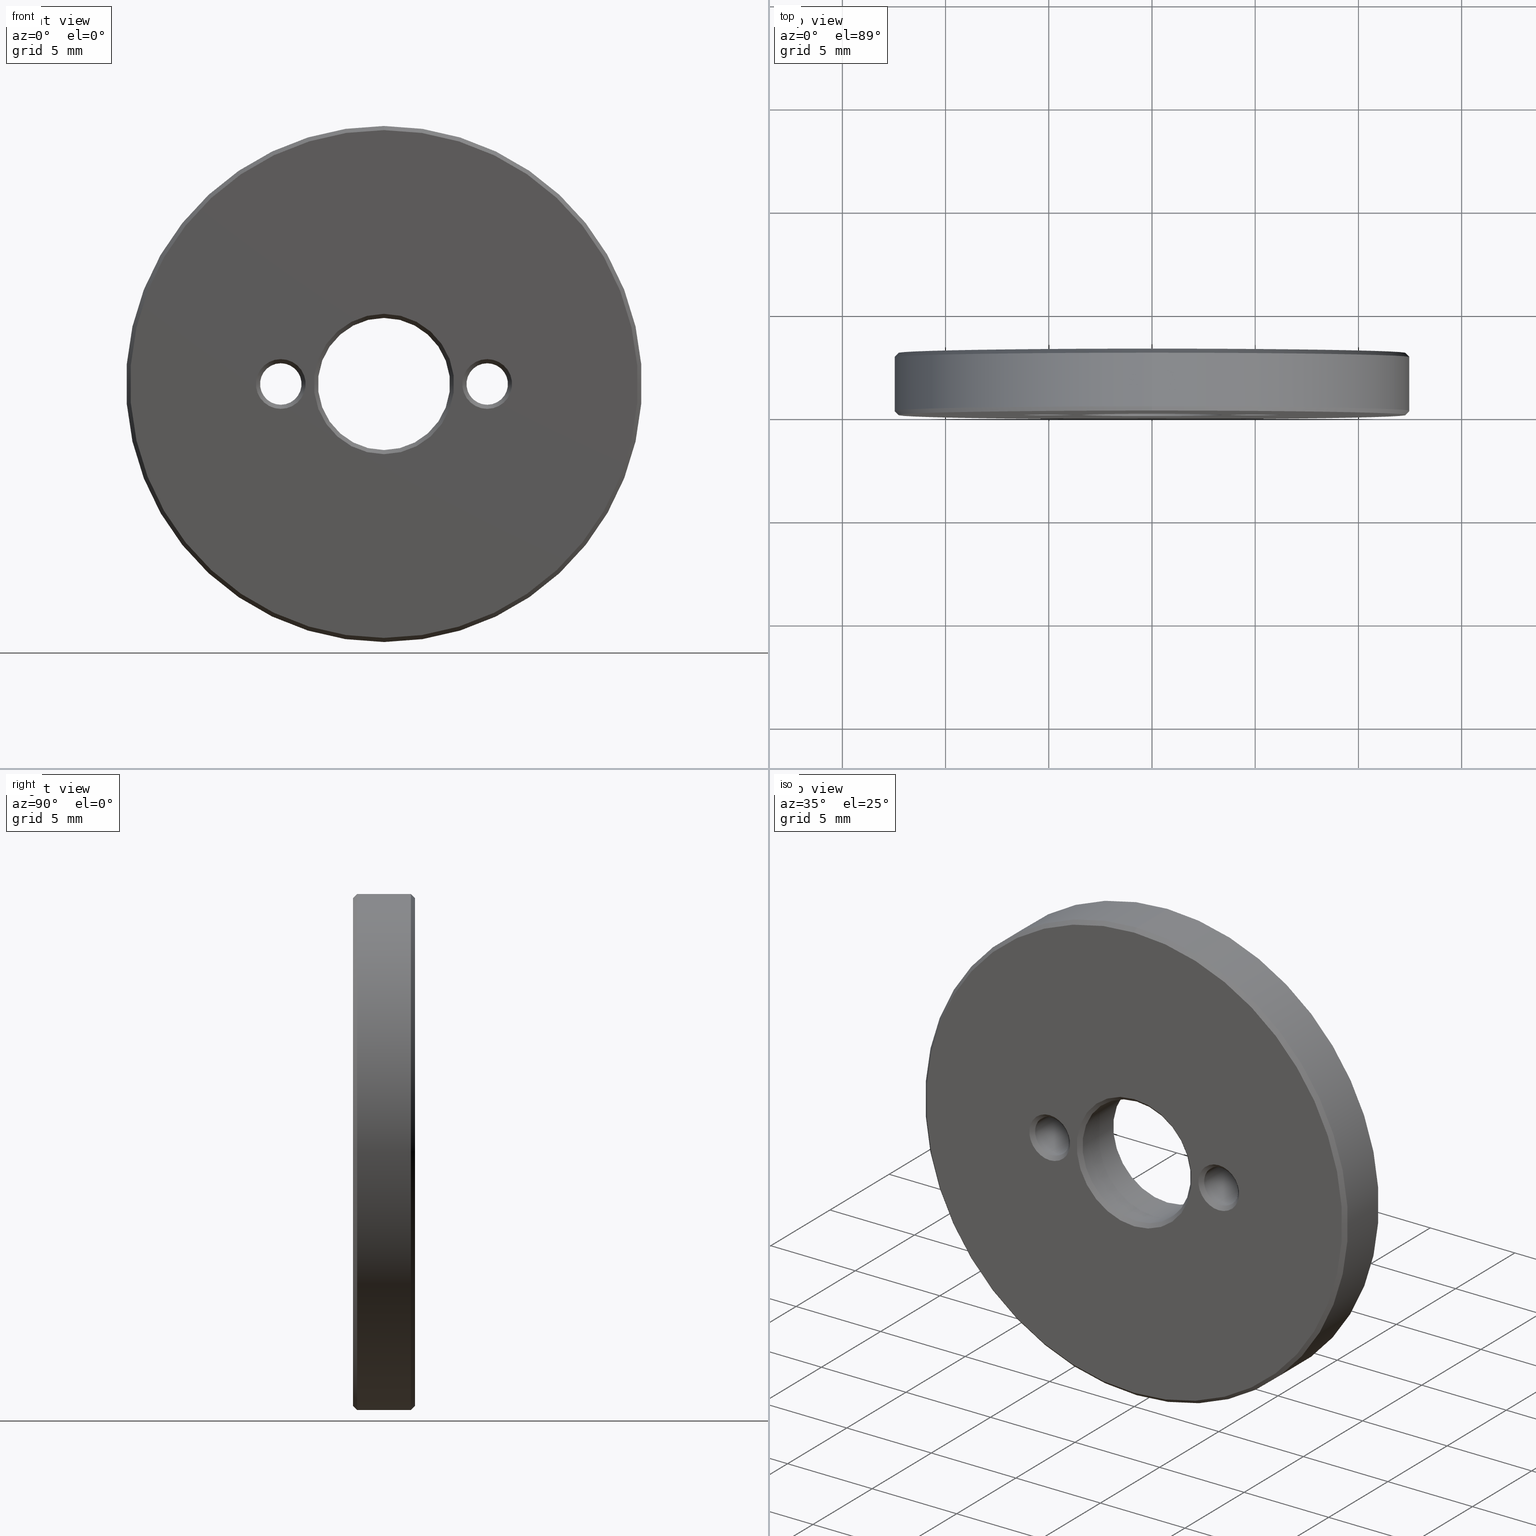
[diagram: canonical four-view strip — front | top / right | iso, engineering-drawing reading convention]
A machine part, canonical four-view strip (front | top / right | iso — engineering-drawing reading convention). The complete STEP part file that produces these views, byte-faithful:
ISO-10303-21;
HEADER;
FILE_DESCRIPTION (( 'STEP AP203' ),
    '1' );
FILE_NAME ('523802.STEP',
    '2022-12-15T01:51:35',
    ( '' ),
    ( '' ),
    'SwSTEP 2.0',
    'SolidWorks 2020',
    '' );
FILE_SCHEMA (( 'CONFIG_CONTROL_DESIGN' ));
ENDSEC;

DATA;
#1 = PERSON ( 'δָ��', 'δָ��', 'δָ��', ('δָ��'), ('δָ��'), ('δָ��') ) ;
#2 = DIRECTION ( 'NONE',  ( 0.000000000000000000, 0.000000000000000000, 1.000000000000000000 ) ) ;
#3 = EDGE_CURVE ( 'NONE', #378, #378, #266, .T. ) ;
#4 = DIRECTION ( 'NONE',  ( 0.000000000000000000, 0.000000000000000000, 1.000000000000000000 ) ) ;
#5 = CARTESIAN_POINT ( 'NONE',  ( 5.000000000000000000, 3.000000000000000000, -1.836970198721029194E-15 ) ) ;
#6 = EDGE_CURVE ( 'NONE', #133, #133, #253, .T. ) ;
#7 = AXIS2_PLACEMENT_3D ( 'NONE', #277, #182, #374 ) ;
#8 = CARTESIAN_POINT ( 'NONE',  ( 0.000000000000000000, 2.800000000000002931, 0.000000000000000000 ) ) ;
#9 = DIRECTION ( 'NONE',  ( 0.000000000000000000, 0.000000000000000000, 1.000000000000000000 ) ) ;
#10 = DIRECTION ( 'NONE',  ( 0.000000000000000000, 1.000000000000000000, 0.000000000000000000 ) ) ;
#11 = CARTESIAN_POINT ( 'NONE',  ( 0.000000000000000000, 3.000000000000000000, 0.000000000000000000 ) ) ;
#12 = ORIENTED_EDGE ( 'NONE', *, *, #236, .T. ) ;
#13 = CARTESIAN_POINT ( 'NONE',  ( 0.000000000000000000, 0.1999999999999931555, 3.200000000000000178 ) ) ;
#14 = EDGE_LOOP ( 'NONE', ( #112 ) ) ;
#15 = FACE_BOUND ( 'NONE', #178, .T. ) ;
#16 = FACE_BOUND ( 'NONE', #380, .T. ) ;
#17 = CIRCLE ( 'NONE', #135, 1.204999999999994298 ) ;
#18 = PERSON_AND_ORGANIZATION_ROLE ( 'creator' ) ;
#19 = COORDINATED_UNIVERSAL_TIME_OFFSET ( 8, 0, .AHEAD. ) ;
#20 = DIRECTION ( 'NONE',  ( 0.000000000000000000, 0.000000000000000000, 1.000000000000000000 ) ) ;
#21 =( NAMED_UNIT ( * ) SI_UNIT ( $, .STERADIAN. ) SOLID_ANGLE_UNIT ( ) );
#22 = CARTESIAN_POINT ( 'NONE',  ( 0.000000000000000000, 0.000000000000000000, 0.000000000000000000 ) ) ;
#23 = CONICAL_SURFACE ( 'NONE', #202, 1.004999999999999893, 0.7853981633974526089 ) ;
#24 = PERSON_AND_ORGANIZATION_ROLE ( 'design_supplier' ) ;
#25 = DIRECTION ( 'NONE',  ( 0.000000000000000000, 1.000000000000000000, 0.000000000000000000 ) ) ;
#26 = APPLICATION_PROTOCOL_DEFINITION ( 'international standard', 'config_control_design', 1994, #171 ) ;
#27 = CARTESIAN_POINT ( 'NONE',  ( 0.000000000000000000, 0.000000000000000000, 0.000000000000000000 ) ) ;
#28 = FACE_BOUND ( 'NONE', #364, .T. ) ;
#29 = LOCAL_TIME ( 9, 51, 35.00000000000000000, #140 ) ;
#30 = CARTESIAN_POINT ( 'NONE',  ( 5.000000000000000000, 2.800000000000007372, -1.836970198721029194E-15 ) ) ;
#31 = CYLINDRICAL_SURFACE ( 'NONE', #244, 1.004999999999999893 ) ;
#32 = CIRCLE ( 'NONE', #348, 12.30000000000000249 ) ;
#33 = DIRECTION ( 'NONE',  ( 0.000000000000000000, 0.000000000000000000, 1.000000000000000000 ) ) ;
#34 = EDGE_CURVE ( 'NONE', #229, #229, #309, .T. ) ;
#35 = CIRCLE ( 'NONE', #273, 3.200000000000000178 ) ;
#36 = FACE_BOUND ( 'NONE', #329, .T. ) ;
#37 = DIRECTION ( 'NONE',  ( 0.000000000000000000, 0.000000000000000000, 1.000000000000000000 ) ) ;
#38 = VERTEX_POINT ( 'NONE', #161 ) ;
#39 = LOCAL_TIME ( 9, 51, 35.00000000000000000, #361 ) ;
#40 = VERTEX_POINT ( 'NONE', #13 ) ;
#41 = CARTESIAN_POINT ( 'NONE',  ( 5.000000000000000000, 3.000000000000000000, -1.836970198721029194E-15 ) ) ;
#42 = ORIENTED_EDGE ( 'NONE', *, *, #320, .F. ) ;
#43 = DIRECTION ( 'NONE',  ( 0.000000000000000000, 0.000000000000000000, -1.000000000000000000 ) ) ;
#44 = CARTESIAN_POINT ( 'NONE',  ( 0.000000000000000000, 0.000000000000000000, 0.000000000000000000 ) ) ;
#45 = AXIS2_PLACEMENT_3D ( 'NONE', #68, #343, #280 ) ;
#46 = DATE_TIME_ROLE ( 'creation_date' ) ;
#47 = ADVANCED_BREP_SHAPE_REPRESENTATION ( '523802', ( #338, #386 ), #249 ) ;
#48 = EDGE_LOOP ( 'NONE', ( #264 ) ) ;
#49 =( LENGTH_UNIT ( ) NAMED_UNIT ( * ) SI_UNIT ( .MILLI., .METRE. ) );
#50 = DIRECTION ( 'NONE',  ( -0.000000000000000000, -1.000000000000000000, -0.000000000000000000 ) ) ;
#51 = CALENDAR_DATE ( 2022, 15, 12 ) ;
#52 = APPROVAL ( #263, 'δָ��' ) ;
#53 = DIRECTION ( 'NONE',  ( 0.000000000000000000, 0.000000000000000000, 1.000000000000000000 ) ) ;
#54 = CIRCLE ( 'NONE', #104, 1.004999999999999893 ) ;
#55 = APPROVAL_DATE_TIME ( #299, #52 ) ;
#56 = EDGE_LOOP ( 'NONE', ( #288 ) ) ;
#57 = SHAPE_DEFINITION_REPRESENTATION ( #64, #47 ) ;
#58 = ORIENTED_EDGE ( 'NONE', *, *, #354, .T. ) ;
#59 = ADVANCED_FACE ( 'NONE', ( #237, #85 ), #174, .T. ) ;
#60 = DIRECTION ( 'NONE',  ( 0.000000000000000000, 1.000000000000000000, 0.000000000000000000 ) ) ;
#61 = CARTESIAN_POINT ( 'NONE',  ( 5.000000000000000000, 0.1999999999999944600, -1.836970198721029194E-15 ) ) ;
#62 = EDGE_CURVE ( 'NONE', #383, #383, #32, .T. ) ;
#63 = FACE_BOUND ( 'NONE', #227, .T. ) ;
#64 = PRODUCT_DEFINITION_SHAPE ( 'NONE', 'NONE',  #216 ) ;
#65 = DIRECTION ( 'NONE',  ( -0.000000000000000000, -1.000000000000000000, -0.000000000000000000 ) ) ;
#66 = AXIS2_PLACEMENT_3D ( 'NONE', #121, #158, #125 ) ;
#67 = CIRCLE ( 'NONE', #228, 12.50000000000000000 ) ;
#68 = CARTESIAN_POINT ( 'NONE',  ( -5.000000000000000000, 0.000000000000000000, 0.000000000000000000 ) ) ;
#69 = CARTESIAN_POINT ( 'NONE',  ( -5.000000000000000000, 2.799999999999997158, 1.004999999999999893 ) ) ;
#70 = EDGE_CURVE ( 'NONE', #99, #99, #222, .T. ) ;
#71 = VERTEX_POINT ( 'NONE', #77 ) ;
#72 = EDGE_LOOP ( 'NONE', ( #81 ) ) ;
#73 = ADVANCED_FACE ( 'NONE', ( #118, #391 ), #368, .T. ) ;
#74 = CC_DESIGN_APPROVAL ( #52, ( #211 ) ) ;
#75 = DIRECTION ( 'NONE',  ( 0.000000000000000000, 0.000000000000000000, 1.000000000000000000 ) ) ;
#76 = EDGE_LOOP ( 'NONE', ( #270 ) ) ;
#77 = CARTESIAN_POINT ( 'NONE',  ( 0.000000000000000000, 2.800000000000002931, 12.50000000000000000 ) ) ;
#78 = EDGE_LOOP ( 'NONE', ( #356 ) ) ;
#79 = CARTESIAN_POINT ( 'NONE',  ( 5.000000000000000000, 0.000000000000000000, 1.204999999999992522 ) ) ;
#80 = DATE_TIME_ROLE ( 'classification_date' ) ;
#81 = ORIENTED_EDGE ( 'NONE', *, *, #34, .F. ) ;
#82 = LOCAL_TIME ( 9, 51, 35.00000000000000000, #117 ) ;
#83 = EDGE_LOOP ( 'NONE', ( #180 ) ) ;
#84 = PERSON_AND_ORGANIZATION_ROLE ( 'design_owner' ) ;
#85 = FACE_BOUND ( 'NONE', #166, .T. ) ;
#86 = EDGE_LOOP ( 'NONE', ( #324 ) ) ;
#87 = APPROVAL_PERSON_ORGANIZATION ( #138, #52, #390 ) ;
#88 = CALENDAR_DATE ( 2022, 15, 12 ) ;
#89 = DIRECTION ( 'NONE',  ( -0.000000000000000000, -1.000000000000000000, -0.000000000000000000 ) ) ;
#90 = FACE_BOUND ( 'NONE', #76, .T. ) ;
#91 = FACE_OUTER_BOUND ( 'NONE', #272, .T. ) ;
#92 = LOCAL_TIME ( 9, 51, 35.00000000000000000, #359 ) ;
#93 = CYLINDRICAL_SURFACE ( 'NONE', #365, 3.200000000000000178 ) ;
#94 = ADVANCED_FACE ( 'NONE', ( #304, #139 ), #148, .F. ) ;
#95 = DIRECTION ( 'NONE',  ( 0.000000000000000000, 0.000000000000000000, -1.000000000000000000 ) ) ;
#96 = FACE_BOUND ( 'NONE', #173, .T. ) ;
#97 = AXIS2_PLACEMENT_3D ( 'NONE', #41, #376, #165 ) ;
#98 = CARTESIAN_POINT ( 'NONE',  ( 0.000000000000000000, 0.000000000000000000, 12.29999999999999893 ) ) ;
#99 = VERTEX_POINT ( 'NONE', #224 ) ;
#100 = EDGE_LOOP ( 'NONE', ( #142 ) ) ;
#101 = FACE_OUTER_BOUND ( 'NONE', #106, .T. ) ;
#102 = ORIENTED_EDGE ( 'NONE', *, *, #379, .F. ) ;
#103 = ADVANCED_FACE ( 'NONE', ( #247, #312 ), #313, .F. ) ;
#104 = AXIS2_PLACEMENT_3D ( 'NONE', #255, #128, #252 ) ;
#105 = DIRECTION ( 'NONE',  ( 0.000000000000000000, 0.000000000000000000, -1.000000000000000000 ) ) ;
#106 = EDGE_LOOP ( 'NONE', ( #384 ) ) ;
#107 = DIRECTION ( 'NONE',  ( -0.000000000000000000, -1.000000000000000000, -0.000000000000000000 ) ) ;
#108 = PERSON_AND_ORGANIZATION ( #1, #265 ) ;
#109 = ORIENTED_EDGE ( 'NONE', *, *, #159, .T. ) ;
#110 = PERSON_AND_ORGANIZATION ( #1, #265 ) ;
#111 = ADVANCED_FACE ( 'NONE', ( #91, #126 ), #93, .F. ) ;
#112 = ORIENTED_EDGE ( 'NONE', *, *, #236, .F. ) ;
#113 = APPLICATION_PROTOCOL_DEFINITION ( 'international standard', 'config_control_design', 1994, #303 ) ;
#114 = DIRECTION ( 'NONE',  ( 0.000000000000000000, 0.000000000000000000, 1.000000000000000000 ) ) ;
#115 =( NAMED_UNIT ( * ) PLANE_ANGLE_UNIT ( ) SI_UNIT ( $, .RADIAN. ) );
#116 = ORIENTED_EDGE ( 'NONE', *, *, #127, .T. ) ;
#117 = COORDINATED_UNIVERSAL_TIME_OFFSET ( 8, 0, .AHEAD. ) ;
#118 = FACE_OUTER_BOUND ( 'NONE', #56, .T. ) ;
#119 = AXIS2_PLACEMENT_3D ( 'NONE', #61, #310, #33 ) ;
#120 = ADVANCED_FACE ( 'NONE', ( #183, #36 ), #385, .F. ) ;
#121 = CARTESIAN_POINT ( 'NONE',  ( 0.000000000000000000, 0.000000000000000000, 0.000000000000000000 ) ) ;
#122 = CARTESIAN_POINT ( 'NONE',  ( 0.000000000000000000, 0.2000000000000022593, 0.000000000000000000 ) ) ;
#123 = FACE_OUTER_BOUND ( 'NONE', #230, .T. ) ;
#124 = CC_DESIGN_DATE_AND_TIME_ASSIGNMENT ( #176, #46, ( #216 ) ) ;
#125 = DIRECTION ( 'NONE',  ( 0.000000000000000000, -0.000000000000000000, 1.000000000000000000 ) ) ;
#126 = FACE_OUTER_BOUND ( 'NONE', #267, .T. ) ;
#127 = EDGE_CURVE ( 'NONE', #192, #192, #35, .T. ) ;
#128 = DIRECTION ( 'NONE',  ( 0.000000000000000000, 1.000000000000000000, 0.000000000000000000 ) ) ;
#129 = FACE_OUTER_BOUND ( 'NONE', #14, .T. ) ;
#130 = ORIENTED_EDGE ( 'NONE', *, *, #206, .T. ) ;
#131 = CARTESIAN_POINT ( 'NONE',  ( -5.000000000000000000, 2.799999999999997158, 0.000000000000000000 ) ) ;
#132 = ORIENTED_EDGE ( 'NONE', *, *, #379, .T. ) ;
#133 = VERTEX_POINT ( 'NONE', #258 ) ;
#134 = CC_DESIGN_PERSON_AND_ORGANIZATION_ASSIGNMENT ( #110, #172, ( #211 ) ) ;
#135 = AXIS2_PLACEMENT_3D ( 'NONE', #375, #339, #217 ) ;
#136 = CONICAL_SURFACE ( 'NONE', #353, 1.204999999999994298, 0.7853981633974482790 ) ;
#137 = CARTESIAN_POINT ( 'NONE',  ( 0.000000000000000000, 3.000000000000000000, 3.400000000000000355 ) ) ;
#138 = PERSON_AND_ORGANIZATION ( #1, #265 ) ;
#139 = FACE_OUTER_BOUND ( 'NONE', #225, .T. ) ;
#140 = COORDINATED_UNIVERSAL_TIME_OFFSET ( 8, 0, .AHEAD. ) ;
#141 = CC_DESIGN_PERSON_AND_ORGANIZATION_ASSIGNMENT ( #292, #18, ( #216 ) ) ;
#142 = ORIENTED_EDGE ( 'NONE', *, *, #354, .F. ) ;
#143 = CC_DESIGN_APPROVAL ( #279, ( #216 ) ) ;
#144 = ORIENTED_EDGE ( 'NONE', *, *, #6, .F. ) ;
#145 = SECURITY_CLASSIFICATION_LEVEL ( 'unclassified' ) ;
#146 = PRODUCT_RELATED_PRODUCT_CATEGORY ( 'detail', '', ( #189 ) ) ;
#147 = ORIENTED_EDGE ( 'NONE', *, *, #3, .T. ) ;
#148 = CONICAL_SURFACE ( 'NONE', #210, 1.204999999999994298, 0.7853981633974482790 ) ;
#149 = PERSON_AND_ORGANIZATION ( #1, #265 ) ;
#150 = CARTESIAN_POINT ( 'NONE',  ( 0.000000000000000000, 3.000000000000000000, 0.000000000000000000 ) ) ;
#151 = FACE_OUTER_BOUND ( 'NONE', #78, .T. ) ;
#152 = AXIS2_PLACEMENT_3D ( 'NONE', #30, #250, #2 ) ;
#153 = APPROVAL_PERSON_ORGANIZATION ( #169, #279, #209 ) ;
#154 = FACE_OUTER_BOUND ( 'NONE', #86, .T. ) ;
#155 = DIRECTION ( 'NONE',  ( 0.000000000000000000, 0.000000000000000000, 1.000000000000000000 ) ) ;
#156 = CARTESIAN_POINT ( 'NONE',  ( -5.000000000000000000, 3.000000000000000000, 0.000000000000000000 ) ) ;
#157 = AXIS2_PLACEMENT_3D ( 'NONE', #5, #65, #43 ) ;
#158 = DIRECTION ( 'NONE',  ( 0.000000000000000000, 1.000000000000000000, 0.000000000000000000 ) ) ;
#159 = EDGE_CURVE ( 'NONE', #71, #71, #259, .T. ) ;
#160 = DIRECTION ( 'NONE',  ( 0.000000000000000000, 1.000000000000000000, 0.000000000000000000 ) ) ;
#161 = CARTESIAN_POINT ( 'NONE',  ( 5.000000000000000000, 3.000000000000000000, 1.204999999999992522 ) ) ;
#162 = ORIENTED_EDGE ( 'NONE', *, *, #62, .F. ) ;
#163 = CLOSED_SHELL ( 'NONE', ( #336, #199, #73, #111, #307, #246, #340, #94, #170, #285, #367, #103, #59, #120 ) ) ;
#164 = FACE_BOUND ( 'NONE', #205, .T. ) ;
#165 = DIRECTION ( 'NONE',  ( 0.000000000000000000, 0.000000000000000000, 1.000000000000000000 ) ) ;
#166 = EDGE_LOOP ( 'NONE', ( #162 ) ) ;
#167 = VERTEX_POINT ( 'NONE', #137 ) ;
#168 = EDGE_LOOP ( 'NONE', ( #327 ) ) ;
#169 = PERSON_AND_ORGANIZATION ( #1, #265 ) ;
#170 = ADVANCED_FACE ( 'NONE', ( #341, #218 ), #241, .F. ) ;
#171 = APPLICATION_CONTEXT ( 'configuration controlled 3d designs of mechanical parts and assemblies' ) ;
#172 = PERSON_AND_ORGANIZATION_ROLE ( 'creator' ) ;
#173 = EDGE_LOOP ( 'NONE', ( #200 ) ) ;
#174 = CONICAL_SURFACE ( 'NONE', #381, 12.30000000000000249, 0.7853981633974526089 ) ;
#175 = CARTESIAN_POINT ( 'NONE',  ( -5.000000000000000000, 0.1999999999999944600, 0.000000000000000000 ) ) ;
#176 = DATE_AND_TIME ( #51, #82 ) ;
#177 = AXIS2_PLACEMENT_3D ( 'NONE', #284, #226, #351 ) ;
#178 = EDGE_LOOP ( 'NONE', ( #42 ) ) ;
#179 = PERSON_AND_ORGANIZATION ( #1, #265 ) ;
#180 = ORIENTED_EDGE ( 'NONE', *, *, #70, .F. ) ;
#181 = CARTESIAN_POINT ( 'NONE',  ( -5.000000000000000000, 3.000000000000000000, 0.000000000000000000 ) ) ;
#182 = DIRECTION ( 'NONE',  ( -0.000000000000000000, -1.000000000000000000, -0.000000000000000000 ) ) ;
#183 = FACE_OUTER_BOUND ( 'NONE', #395, .T. ) ;
#184 = CARTESIAN_POINT ( 'NONE',  ( 0.000000000000000000, 2.800000000000003819, 0.000000000000000000 ) ) ;
#185 = DIRECTION ( 'NONE',  ( 0.000000000000000000, 0.000000000000000000, -1.000000000000000000 ) ) ;
#186 = EDGE_CURVE ( 'NONE', #193, #193, #17, .T. ) ;
#187 = AXIS2_PLACEMENT_3D ( 'NONE', #370, #191, #251 ) ;
#188 = CIRCLE ( 'NONE', #97, 1.204999999999994298 ) ;
#189 = PRODUCT ( '523802', '523802', '', ( #328 ) ) ;
#190 = AXIS2_PLACEMENT_3D ( 'NONE', #300, #214, #335 ) ;
#191 = DIRECTION ( 'NONE',  ( -0.000000000000000000, -1.000000000000000000, -0.000000000000000000 ) ) ;
#192 = VERTEX_POINT ( 'NONE', #355 ) ;
#193 = VERTEX_POINT ( 'NONE', #79 ) ;
#194 = CIRCLE ( 'NONE', #177, 3.200000000000000178 ) ;
#195 = CC_DESIGN_PERSON_AND_ORGANIZATION_ASSIGNMENT ( #179, #84, ( #189 ) ) ;
#196 = CARTESIAN_POINT ( 'NONE',  ( -5.000000000000000000, 2.799999999999997158, 0.000000000000000000 ) ) ;
#197 = VERTEX_POINT ( 'NONE', #323 ) ;
#198 = ORIENTED_EDGE ( 'NONE', *, *, #347, .F. ) ;
#199 = ADVANCED_FACE ( 'NONE', ( #63, #96, #28, #123 ), #308, .F. ) ;
#200 = ORIENTED_EDGE ( 'NONE', *, *, #186, .T. ) ;
#201 = AXIS2_PLACEMENT_3D ( 'NONE', #8, #344, #4 ) ;
#202 = AXIS2_PLACEMENT_3D ( 'NONE', #196, #10, #321 ) ;
#203 = PERSON_AND_ORGANIZATION ( #1, #265 ) ;
#204 = ORIENTED_EDGE ( 'NONE', *, *, #159, .F. ) ;
#205 = EDGE_LOOP ( 'NONE', ( #322 ) ) ;
#206 = EDGE_CURVE ( 'NONE', #197, #197, #289, .T. ) ;
#207 = APPROVAL_STATUS ( 'not_yet_approved' ) ;
#208 = EDGE_LOOP ( 'NONE', ( #204 ) ) ;
#209 = APPROVAL_ROLE ( '' ) ;
#210 = AXIS2_PLACEMENT_3D ( 'NONE', #262, #233, #95 ) ;
#211 = PRODUCT_DEFINITION_FORMATION_WITH_SPECIFIED_SOURCE ( '�κ�', '', #189, .NOT_KNOWN. ) ;
#212 = ORIENTED_EDGE ( 'NONE', *, *, #206, .F. ) ;
#213 = DATE_AND_TIME ( #88, #314 ) ;
#214 = DIRECTION ( 'NONE',  ( -0.000000000000000000, -1.000000000000000000, -0.000000000000000000 ) ) ;
#215 = FACE_OUTER_BOUND ( 'NONE', #48, .T. ) ;
#216 = PRODUCT_DEFINITION ( 'δ֪', '', #211, #371 ) ;
#217 = DIRECTION ( 'NONE',  ( 0.000000000000000000, 0.000000000000000000, 1.000000000000000000 ) ) ;
#218 = FACE_OUTER_BOUND ( 'NONE', #72, .T. ) ;
#219 = DIRECTION ( 'NONE',  ( -0.000000000000000000, -1.000000000000000000, -0.000000000000000000 ) ) ;
#220 = CARTESIAN_POINT ( 'NONE',  ( 0.000000000000000000, 3.000000000000000000, 0.000000000000000000 ) ) ;
#221 = CIRCLE ( 'NONE', #45, 1.204999999999994298 ) ;
#222 = CIRCLE ( 'NONE', #387, 1.205000000000004734 ) ;
#223 = VERTEX_POINT ( 'NONE', #316 ) ;
#224 = CARTESIAN_POINT ( 'NONE',  ( -5.000000000000000000, 3.000000000000000000, 1.205000000000004734 ) ) ;
#225 = EDGE_LOOP ( 'NONE', ( #352 ) ) ;
#226 = DIRECTION ( 'NONE',  ( -0.000000000000000000, -1.000000000000000000, -0.000000000000000000 ) ) ;
#227 = EDGE_LOOP ( 'NONE', ( #12 ) ) ;
#228 = AXIS2_PLACEMENT_3D ( 'NONE', #231, #282, #37 ) ;
#229 = VERTEX_POINT ( 'NONE', #260 ) ;
#230 = EDGE_LOOP ( 'NONE', ( #147 ) ) ;
#231 = CARTESIAN_POINT ( 'NONE',  ( 0.000000000000000000, 0.2000000000000022593, 0.000000000000000000 ) ) ;
#232 = CALENDAR_DATE ( 2022, 15, 12 ) ;
#233 = DIRECTION ( 'NONE',  ( -0.000000000000000000, -1.000000000000000000, -0.000000000000000000 ) ) ;
#234 = APPROVAL_STATUS ( 'not_yet_approved' ) ;
#235 = DIRECTION ( 'NONE',  ( 0.000000000000000000, 0.000000000000000000, -1.000000000000000000 ) ) ;
#236 = EDGE_CURVE ( 'NONE', #223, #223, #221, .T. ) ;
#237 = FACE_OUTER_BOUND ( 'NONE', #208, .T. ) ;
#238 = CALENDAR_DATE ( 2022, 15, 12 ) ;
#239 = ORIENTED_EDGE ( 'NONE', *, *, #70, .T. ) ;
#240 = DATE_AND_TIME ( #238, #92 ) ;
#241 = CONICAL_SURFACE ( 'NONE', #187, 3.399999999999993250, 0.7853981633974482790 ) ;
#242 = SECURITY_CLASSIFICATION ( '', '', #145 ) ;
#243 = EDGE_LOOP ( 'NONE', ( #132 ) ) ;
#244 = AXIS2_PLACEMENT_3D ( 'NONE', #156, #245, #369 ) ;
#245 = DIRECTION ( 'NONE',  ( -0.000000000000000000, -1.000000000000000000, -0.000000000000000000 ) ) ;
#246 = ADVANCED_FACE ( 'NONE', ( #151, #154 ), #31, .F. ) ;
#247 = FACE_OUTER_BOUND ( 'NONE', #283, .T. ) ;
#248 = CARTESIAN_POINT ( 'NONE',  ( 0.000000000000000000, 2.800000000000003819, 0.000000000000000000 ) ) ;
#249 =( GEOMETRIC_REPRESENTATION_CONTEXT ( 3 ) GLOBAL_UNCERTAINTY_ASSIGNED_CONTEXT ( ( #342 ) ) GLOBAL_UNIT_ASSIGNED_CONTEXT ( ( #49, #115, #21 ) ) REPRESENTATION_CONTEXT ( 'NONE', 'WORKASPACE' ) );
#250 = DIRECTION ( 'NONE',  ( 0.000000000000000000, 1.000000000000000000, 0.000000000000000000 ) ) ;
#251 = DIRECTION ( 'NONE',  ( 0.000000000000000000, 0.000000000000000000, -1.000000000000000000 ) ) ;
#252 = DIRECTION ( 'NONE',  ( 0.000000000000000000, 0.000000000000000000, 1.000000000000000000 ) ) ;
#253 = CIRCLE ( 'NONE', #305, 1.004999999999999893 ) ;
#254 = CONICAL_SURFACE ( 'NONE', #291, 12.50000000000000000, 0.7853981633974482790 ) ;
#255 = CARTESIAN_POINT ( 'NONE',  ( 5.000000000000000000, 2.800000000000007372, -1.836970198721029194E-15 ) ) ;
#256 = EDGE_LOOP ( 'NONE', ( #109 ) ) ;
#257 = DIRECTION ( 'NONE',  ( 0.000000000000000000, -0.000000000000000000, 1.000000000000000000 ) ) ;
#258 = CARTESIAN_POINT ( 'NONE',  ( -5.000000000000000000, 0.1999999999999944600, 1.004999999999999893 ) ) ;
#259 = CIRCLE ( 'NONE', #201, 12.50000000000000000 ) ;
#260 = CARTESIAN_POINT ( 'NONE',  ( 0.000000000000000000, 0.000000000000000000, 3.399999999999993250 ) ) ;
#261 = CALENDAR_DATE ( 2022, 15, 12 ) ;
#262 = CARTESIAN_POINT ( 'NONE',  ( 5.000000000000000000, 0.000000000000000000, -1.836970198721029194E-15 ) ) ;
#263 = APPROVAL_STATUS ( 'not_yet_approved' ) ;
#264 = ORIENTED_EDGE ( 'NONE', *, *, #311, .F. ) ;
#265 = ORGANIZATION ( 'δָ��', 'δָ��', '' ) ;
#266 = CIRCLE ( 'NONE', #319, 12.29999999999999893 ) ;
#267 = EDGE_LOOP ( 'NONE', ( #116 ) ) ;
#268 = EDGE_CURVE ( 'NONE', #167, #167, #326, .T. ) ;
#269 = APPROVAL_DATE_TIME ( #330, #279 ) ;
#270 = ORIENTED_EDGE ( 'NONE', *, *, #3, .F. ) ;
#271 = VERTEX_POINT ( 'NONE', #332 ) ;
#272 = EDGE_LOOP ( 'NONE', ( #58 ) ) ;
#273 = AXIS2_PLACEMENT_3D ( 'NONE', #248, #60, #373 ) ;
#274 = DIRECTION ( 'NONE',  ( 0.000000000000000000, 1.000000000000000000, 0.000000000000000000 ) ) ;
#275 = FACE_OUTER_BOUND ( 'NONE', #389, .T. ) ;
#276 = FACE_OUTER_BOUND ( 'NONE', #243, .T. ) ;
#277 = CARTESIAN_POINT ( 'NONE',  ( 0.000000000000000000, 3.000000000000000000, 0.000000000000000000 ) ) ;
#278 = AXIS2_PLACEMENT_3D ( 'NONE', #11, #281, #257 ) ;
#279 = APPROVAL ( #207, 'δָ��' ) ;
#280 = DIRECTION ( 'NONE',  ( 0.000000000000000000, 0.000000000000000000, 1.000000000000000000 ) ) ;
#281 = DIRECTION ( 'NONE',  ( 0.000000000000000000, 1.000000000000000000, 0.000000000000000000 ) ) ;
#282 = DIRECTION ( 'NONE',  ( -0.000000000000000000, 1.000000000000000000, -0.000000000000000000 ) ) ;
#283 = EDGE_LOOP ( 'NONE', ( #358 ) ) ;
#284 = CARTESIAN_POINT ( 'NONE',  ( 0.000000000000000000, 0.1999999999999931555, 0.000000000000000000 ) ) ;
#285 = ADVANCED_FACE ( 'NONE', ( #90, #215 ), #254, .T. ) ;
#286 = FACE_OUTER_BOUND ( 'NONE', #83, .T. ) ;
#287 = CARTESIAN_POINT ( 'NONE',  ( 0.000000000000000000, 3.000000000000000000, 12.30000000000000249 ) ) ;
#288 = ORIENTED_EDGE ( 'NONE', *, *, #311, .T. ) ;
#289 = CIRCLE ( 'NONE', #119, 1.004999999999999893 ) ;
#290 = CC_DESIGN_PERSON_AND_ORGANIZATION_ASSIGNMENT ( #108, #394, ( #242 ) ) ;
#291 = AXIS2_PLACEMENT_3D ( 'NONE', #122, #337, #155 ) ;
#292 = PERSON_AND_ORGANIZATION ( #1, #265 ) ;
#293 = APPROVAL_ROLE ( '' ) ;
#294 = DIRECTION ( 'NONE',  ( 0.000000000000000000, 0.000000000000000000, 1.000000000000000000 ) ) ;
#295 = AXIS2_PLACEMENT_3D ( 'NONE', #22, #393, #114 ) ;
#296 = DIRECTION ( 'NONE',  ( 0.000000000000000000, 0.000000000000000000, 1.000000000000000000 ) ) ;
#297 = DIRECTION ( 'NONE',  ( -0.000000000000000000, -1.000000000000000000, -0.000000000000000000 ) ) ;
#298 = CC_DESIGN_APPROVAL ( #301, ( #242 ) ) ;
#299 = DATE_AND_TIME ( #261, #39 ) ;
#300 = CARTESIAN_POINT ( 'NONE',  ( 0.000000000000000000, 3.000000000000000000, 0.000000000000000000 ) ) ;
#301 = APPROVAL ( #234, 'δָ��' ) ;
#302 = EDGE_LOOP ( 'NONE', ( #212 ) ) ;
#303 = APPLICATION_CONTEXT ( 'configuration controlled 3d designs of mechanical parts and assemblies' ) ;
#304 = FACE_BOUND ( 'NONE', #302, .T. ) ;
#305 = AXIS2_PLACEMENT_3D ( 'NONE', #175, #297, #20 ) ;
#306 = CYLINDRICAL_SURFACE ( 'NONE', #157, 1.004999999999999893 ) ;
#307 = ADVANCED_FACE ( 'NONE', ( #275, #276 ), #306, .F. ) ;
#308 = PLANE ( 'NONE',  #66 ) ;
#309 = CIRCLE ( 'NONE', #295, 3.399999999999993250 ) ;
#310 = DIRECTION ( 'NONE',  ( -0.000000000000000000, -1.000000000000000000, -0.000000000000000000 ) ) ;
#311 = EDGE_CURVE ( 'NONE', #346, #346, #67, .T. ) ;
#312 = FACE_BOUND ( 'NONE', #333, .T. ) ;
#313 = CONICAL_SURFACE ( 'NONE', #345, 3.200000000000000178, 0.7853981633974580490 ) ;
#314 = LOCAL_TIME ( 9, 51, 35.00000000000000000, #19 ) ;
#315 = VERTEX_POINT ( 'NONE', #69 ) ;
#316 = CARTESIAN_POINT ( 'NONE',  ( -5.000000000000000000, 0.000000000000000000, 1.204999999999994298 ) ) ;
#317 = FACE_BOUND ( 'NONE', #350, .T. ) ;
#318 = APPROVAL_PERSON_ORGANIZATION ( #203, #301, #293 ) ;
#319 = AXIS2_PLACEMENT_3D ( 'NONE', #27, #50, #294 ) ;
#320 = EDGE_CURVE ( 'NONE', #315, #315, #372, .T. ) ;
#321 = DIRECTION ( 'NONE',  ( 0.000000000000000000, 0.000000000000000000, 1.000000000000000000 ) ) ;
#322 = ORIENTED_EDGE ( 'NONE', *, *, #268, .T. ) ;
#323 = CARTESIAN_POINT ( 'NONE',  ( 5.000000000000000000, 0.1999999999999944600, 1.004999999999998117 ) ) ;
#324 = ORIENTED_EDGE ( 'NONE', *, *, #320, .T. ) ;
#325 = CC_DESIGN_PERSON_AND_ORGANIZATION_ASSIGNMENT ( #149, #24, ( #211 ) ) ;
#326 = CIRCLE ( 'NONE', #7, 3.400000000000000355 ) ;
#327 = ORIENTED_EDGE ( 'NONE', *, *, #347, .T. ) ;
#328 = MECHANICAL_CONTEXT ( 'NONE', #303, 'mechanical' ) ;
#329 = EDGE_LOOP ( 'NONE', ( #102 ) ) ;
#330 = DATE_AND_TIME ( #232, #29 ) ;
#331 = DIRECTION ( 'NONE',  ( 0.000000000000000000, -1.000000000000000000, 0.000000000000000000 ) ) ;
#332 = CARTESIAN_POINT ( 'NONE',  ( 5.000000000000000000, 2.800000000000007372, 1.004999999999998117 ) ) ;
#333 = EDGE_LOOP ( 'NONE', ( #363 ) ) ;
#334 = APPROVAL_DATE_TIME ( #213, #301 ) ;
#335 = DIRECTION ( 'NONE',  ( 0.000000000000000000, 0.000000000000000000, -1.000000000000000000 ) ) ;
#336 = ADVANCED_FACE ( 'NONE', ( #16, #164, #101, #349 ), #357, .T. ) ;
#337 = DIRECTION ( 'NONE',  ( -0.000000000000000000, 1.000000000000000000, -0.000000000000000000 ) ) ;
#338 = MANIFOLD_SOLID_BREP ( '����1', #163 ) ;
#339 = DIRECTION ( 'NONE',  ( 0.000000000000000000, 1.000000000000000000, 0.000000000000000000 ) ) ;
#340 = ADVANCED_FACE ( 'NONE', ( #317, #129 ), #136, .F. ) ;
#341 = FACE_BOUND ( 'NONE', #100, .T. ) ;
#342 = UNCERTAINTY_MEASURE_WITH_UNIT (LENGTH_MEASURE( 1.000000000000000082E-05 ), #49, 'distance_accuracy_value', 'NONE');
#343 = DIRECTION ( 'NONE',  ( 0.000000000000000000, 1.000000000000000000, 0.000000000000000000 ) ) ;
#344 = DIRECTION ( 'NONE',  ( 0.000000000000000000, -1.000000000000000000, 0.000000000000000000 ) ) ;
#345 = AXIS2_PLACEMENT_3D ( 'NONE', #184, #274, #9 ) ;
#346 = VERTEX_POINT ( 'NONE', #388 ) ;
#347 = EDGE_CURVE ( 'NONE', #38, #38, #188, .T. ) ;
#348 = AXIS2_PLACEMENT_3D ( 'NONE', #150, #25, #53 ) ;
#349 = FACE_BOUND ( 'NONE', #168, .T. ) ;
#350 = EDGE_LOOP ( 'NONE', ( #144 ) ) ;
#351 = DIRECTION ( 'NONE',  ( 0.000000000000000000, 0.000000000000000000, 1.000000000000000000 ) ) ;
#352 = ORIENTED_EDGE ( 'NONE', *, *, #186, .F. ) ;
#353 = AXIS2_PLACEMENT_3D ( 'NONE', #382, #107, #105 ) ;
#354 = EDGE_CURVE ( 'NONE', #40, #40, #194, .T. ) ;
#355 = CARTESIAN_POINT ( 'NONE',  ( 0.000000000000000000, 2.800000000000003819, 3.200000000000000178 ) ) ;
#356 = ORIENTED_EDGE ( 'NONE', *, *, #6, .T. ) ;
#357 = PLANE ( 'NONE',  #278 ) ;
#358 = ORIENTED_EDGE ( 'NONE', *, *, #268, .F. ) ;
#359 = COORDINATED_UNIVERSAL_TIME_OFFSET ( 8, 0, .AHEAD. ) ;
#360 = DIRECTION ( 'NONE',  ( 0.000000000000000000, 0.000000000000000000, 1.000000000000000000 ) ) ;
#361 = COORDINATED_UNIVERSAL_TIME_OFFSET ( 8, 0, .AHEAD. ) ;
#362 = ORIENTED_EDGE ( 'NONE', *, *, #34, .T. ) ;
#363 = ORIENTED_EDGE ( 'NONE', *, *, #127, .F. ) ;
#364 = EDGE_LOOP ( 'NONE', ( #362 ) ) ;
#365 = AXIS2_PLACEMENT_3D ( 'NONE', #220, #219, #185 ) ;
#366 = CC_DESIGN_SECURITY_CLASSIFICATION ( #242, ( #211 ) ) ;
#367 = ADVANCED_FACE ( 'NONE', ( #286, #15 ), #23, .F. ) ;
#368 = CYLINDRICAL_SURFACE ( 'NONE', #190, 12.50000000000000000 ) ;
#369 = DIRECTION ( 'NONE',  ( 0.000000000000000000, 0.000000000000000000, -1.000000000000000000 ) ) ;
#370 = CARTESIAN_POINT ( 'NONE',  ( 0.000000000000000000, 0.000000000000000000, 0.000000000000000000 ) ) ;
#371 = DESIGN_CONTEXT ( 'detailed design', #171, 'design' ) ;
#372 = CIRCLE ( 'NONE', #377, 1.004999999999999893 ) ;
#373 = DIRECTION ( 'NONE',  ( 0.000000000000000000, 0.000000000000000000, 1.000000000000000000 ) ) ;
#374 = DIRECTION ( 'NONE',  ( 0.000000000000000000, 0.000000000000000000, 1.000000000000000000 ) ) ;
#375 = CARTESIAN_POINT ( 'NONE',  ( 5.000000000000000000, 0.000000000000000000, -1.836970198721029194E-15 ) ) ;
#376 = DIRECTION ( 'NONE',  ( -0.000000000000000000, -1.000000000000000000, -0.000000000000000000 ) ) ;
#377 = AXIS2_PLACEMENT_3D ( 'NONE', #131, #160, #75 ) ;
#378 = VERTEX_POINT ( 'NONE', #98 ) ;
#379 = EDGE_CURVE ( 'NONE', #271, #271, #54, .T. ) ;
#380 = EDGE_LOOP ( 'NONE', ( #239 ) ) ;
#381 = AXIS2_PLACEMENT_3D ( 'NONE', #397, #331, #235 ) ;
#382 = CARTESIAN_POINT ( 'NONE',  ( -5.000000000000000000, 0.000000000000000000, 0.000000000000000000 ) ) ;
#383 = VERTEX_POINT ( 'NONE', #287 ) ;
#384 = ORIENTED_EDGE ( 'NONE', *, *, #62, .T. ) ;
#385 = CONICAL_SURFACE ( 'NONE', #152, 1.004999999999999893, 0.7853981633974526089 ) ;
#386 = AXIS2_PLACEMENT_3D ( 'NONE', #44, #296, #392 ) ;
#387 = AXIS2_PLACEMENT_3D ( 'NONE', #181, #89, #360 ) ;
#388 = CARTESIAN_POINT ( 'NONE',  ( 0.000000000000000000, 0.2000000000000022593, 12.50000000000000000 ) ) ;
#389 = EDGE_LOOP ( 'NONE', ( #130 ) ) ;
#390 = APPROVAL_ROLE ( '' ) ;
#391 = FACE_OUTER_BOUND ( 'NONE', #256, .T. ) ;
#392 = DIRECTION ( 'NONE',  ( 1.000000000000000000, 0.000000000000000000, 0.000000000000000000 ) ) ;
#393 = DIRECTION ( 'NONE',  ( 0.000000000000000000, 1.000000000000000000, 0.000000000000000000 ) ) ;
#394 = PERSON_AND_ORGANIZATION_ROLE ( 'classification_officer' ) ;
#395 = EDGE_LOOP ( 'NONE', ( #198 ) ) ;
#396 = CC_DESIGN_DATE_AND_TIME_ASSIGNMENT ( #240, #80, ( #242 ) ) ;
#397 = CARTESIAN_POINT ( 'NONE',  ( 0.000000000000000000, 3.000000000000000000, 0.000000000000000000 ) ) ;
ENDSEC;
END-ISO-10303-21;
